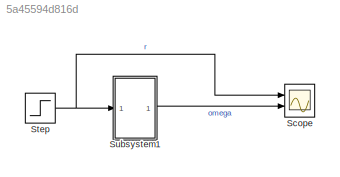
MODEL slx_5a45594d816d
KIND model
CONFIG AbsTol = auto
CONFIG EnableMultiTasking = on
CONFIG FixedStep = auto
CONFIG MaxStep = auto
CONFIG MinStep = auto
CONFIG RelTol = 1e-3
CONFIG SampleTimeConstraint = Unconstrained
CONFIG Solver = ode1
CONFIG SolverName = ode1
CONFIG StartTime = 0.0
CONFIG StopTime = 10.0
BLOCK [Scope] Scope
  Floating = off
  NumInputPorts = 2
  Ports = [2]
  ScopeSpecificationString = Simulink.scopes.TimeScopeBlockCfg('CurrentConfiguration', extmgr.ConfigurationSet(extmgr.Configuration('Core','General UI',true),extmgr.Configuration('Core','Source UI',true),extmgr.Configuration('Sources','WiredSimulink',true,'DataLogging',true,'DataLoggingSaveFormat','StructureWithTime'),extmgr.Configuration('Visuals','Time Domain',true,'SerializedDisplays',{struct('MinYLimReal','-5.93569','MaxY...<+1427ch>
BLOCK [Step] Step
  After = 10
  SampleTime = 0
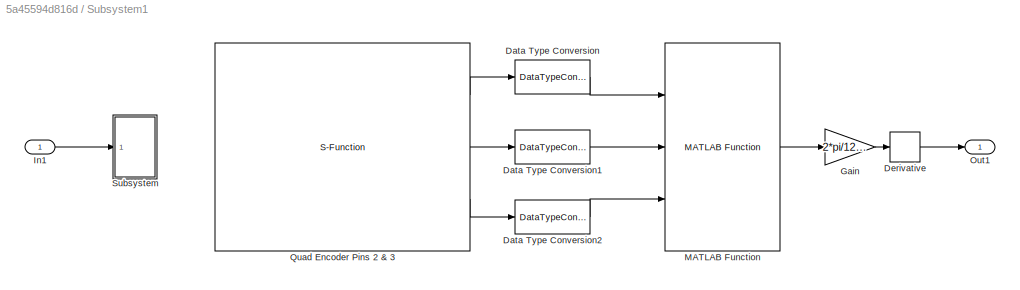
BLOCK [SubSystem] Subsystem1
  Ports = [1, 1]
  RequestExecContextInheritance = off
BLOCK [DataTypeConversion] Subsystem1/Data Type Conversion
  OutDataTypeStr = double
  RndMeth = Floor
  SaturateOnIntegerOverflow = off
BLOCK [DataTypeConversion] Subsystem1/Data Type Conversion1
  OutDataTypeStr = double
  RndMeth = Floor
  SaturateOnIntegerOverflow = off
BLOCK [DataTypeConversion] Subsystem1/Data Type Conversion2
  OutDataTypeStr = double
  RndMeth = Floor
  SaturateOnIntegerOverflow = off
BLOCK [Derivative] Subsystem1/Derivative
BLOCK [Gain] Subsystem1/Gain
  Gain = 2*pi/1216
BLOCK [Inport] Subsystem1/In1
BLOCK [Reference] Subsystem1/MATLAB Function  REF=THLlib/QuadEncoder/MATLAB Function
  Ports = [3, 1]
  SourceBlock = THLlib/QuadEncoder/MATLAB Function
  SourceProductName = Take Home Labs Arduino Support Package
  SourceType = SubSystem
BLOCK [Outport] Subsystem1/Out1
BLOCK [S-Function] Subsystem1/Quad Encoder Pins 2 & 3
  CopyFcn = set_param(gcbh,'LinkStatus','none')
  EnableBusSupport = off
  FunctionName = sf_QuadEncoderCarion
  InitFcn = try, set_param(gcb,'FunctionName','sf_QuadEncoderCarion'), end
  OpenFcn = sfunctionwizard(gcbh)
  Parameters = uint8(0),uint8(2),uint8(3)
  Ports = [0, 3]
  PreSaveFcn = try, set_param(gcb,'FunctionName','sf_QuadEncoderCarion'), end
  SFcnIsStateOwnerBlock = off
  SFunctionDeploymentMode = off
  SFunctionModules = sf_QuadEncoderCarion_wrapper
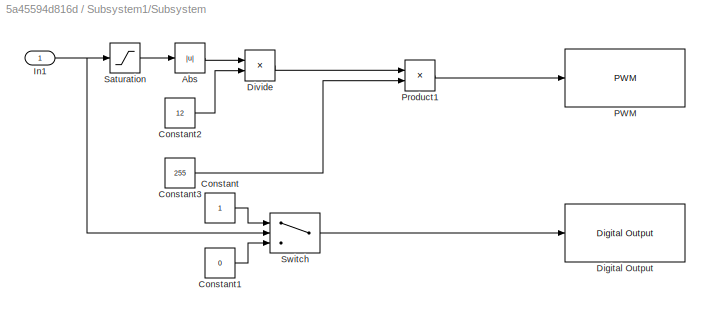
BLOCK [SubSystem] Subsystem1/Subsystem
  Ports = [1]
  RequestExecContextInheritance = off
BLOCK [Abs] Subsystem1/Subsystem/Abs
  SaturateOnIntegerOverflow = off
BLOCK [Constant] Subsystem1/Subsystem/Constant
BLOCK [Constant] Subsystem1/Subsystem/Constant1
  Value = 0
BLOCK [Constant] Subsystem1/Subsystem/Constant2
  Value = 12
BLOCK [Constant] Subsystem1/Subsystem/Constant3
  Value = 255
BLOCK [Reference] Subsystem1/Subsystem/Digital Output  REF=arduinolib/Digital Output
  Ports = [1]
  SourceBlock = arduinolib/Digital Output
  SourceProductBaseCode = ARDUINO
  SourceType = Arduino Digital Output
BLOCK [Product] Subsystem1/Subsystem/Divide
  Inputs = */
  Ports = [2, 1]
BLOCK [Inport] Subsystem1/Subsystem/In1
BLOCK [Reference] Subsystem1/Subsystem/PWM  REF=arduinolib/PWM
  Ports = [1]
  SourceBlock = arduinolib/PWM
  SourceProductBaseCode = ARDUINO
  SourceType = Arduino PWM
BLOCK [Product] Subsystem1/Subsystem/Product1
  Ports = [2, 1]
BLOCK [Saturate] Subsystem1/Subsystem/Saturation
  LowerLimit = -12
  UpperLimit = 12
BLOCK [Switch] Subsystem1/Subsystem/Switch
  Criteria = u2 > Threshold
  InputSameDT = off
  SaturateOnIntegerOverflow = off
NET Step:1 -> Scope:1, Subsystem1:1
LINE Subsystem1/Data Type Conversion1:1 -> Subsystem1/MATLAB Function:2
LINE Subsystem1/Data Type Conversion2:1 -> Subsystem1/MATLAB Function:3
LINE Subsystem1/Data Type Conversion:1 -> Subsystem1/MATLAB Function:1
LINE Subsystem1/Derivative:1 -> Subsystem1/Out1:1
LINE Subsystem1/Gain:1 -> Subsystem1/Derivative:1
LINE Subsystem1/In1:1 -> Subsystem1/Subsystem:1
LINE Subsystem1/MATLAB Function:1 -> Subsystem1/Gain:1
LINE Subsystem1/Quad Encoder Pins 2 & 3:1 -> Subsystem1/Data Type Conversion:1
LINE Subsystem1/Quad Encoder Pins 2 & 3:2 -> Subsystem1/Data Type Conversion1:1
LINE Subsystem1/Quad Encoder Pins 2 & 3:3 -> Subsystem1/Data Type Conversion2:1
LINE Subsystem1/Subsystem/Abs:1 -> Subsystem1/Subsystem/Divide:1
LINE Subsystem1/Subsystem/Constant1:1 -> Subsystem1/Subsystem/Switch:3
LINE Subsystem1/Subsystem/Constant2:1 -> Subsystem1/Subsystem/Divide:2
LINE Subsystem1/Subsystem/Constant3:1 -> Subsystem1/Subsystem/Product1:2
LINE Subsystem1/Subsystem/Constant:1 -> Subsystem1/Subsystem/Switch:1
LINE Subsystem1/Subsystem/Divide:1 -> Subsystem1/Subsystem/Product1:1
NET Subsystem1/Subsystem/In1:1 -> Subsystem1/Subsystem/Saturation:1, Subsystem1/Subsystem/Switch:2
LINE Subsystem1/Subsystem/Product1:1 -> Subsystem1/Subsystem/PWM:1
LINE Subsystem1/Subsystem/Saturation:1 -> Subsystem1/Subsystem/Abs:1
LINE Subsystem1/Subsystem/Switch:1 -> Subsystem1/Subsystem/Digital Output:1
LINE Subsystem1:1 -> Scope:2
note: NET lines group one-source signal fan-out (src -> all destinations, sorted); 1:1 wires keep LINE
